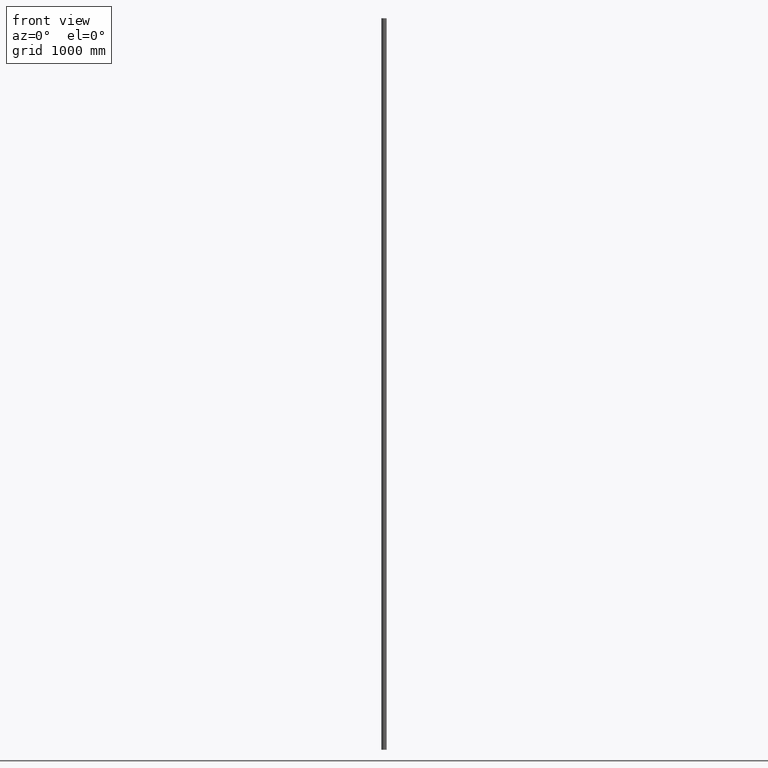
[diagram: clean part render]
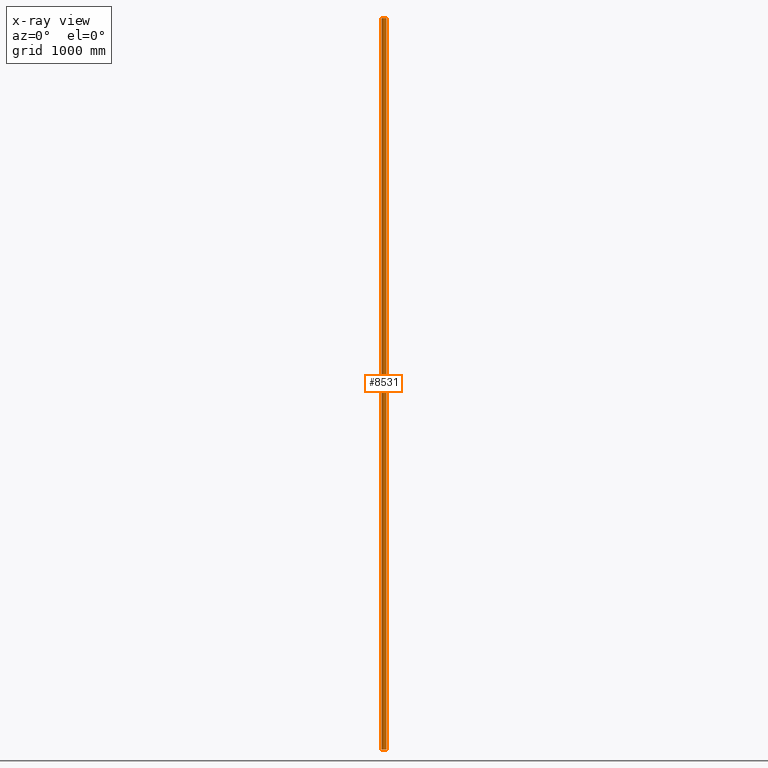
[diagram: x-ray — body ghosted, one internal face saturated and labeled with its STEP entity id]
A machine part, front view, then the same camera in x-ray: the body is ghosted and one INTERNAL B-rep face — a face not visible from any outside direction — is saturated and labeled: STEP entity #8531.
In plain terms, the highlighted cylindrical surface (bore or boss wall) has radius 21.2 mm, axis along (-0, -0, -1).
Its self-contained STEP definition (entity closure, byte-faithful):
#290 = CARTESIAN_POINT ( 'NONE',  ( 0.000000000000000000, 0.000000000000000000, 3000.000000000000000 ) ) ;
#644 = DIRECTION ( 'NONE',  ( -0.000000000000000000, -0.000000000000000000, -1.000000000000000000 ) ) ;
#861 = FACE_OUTER_BOUND ( 'NONE', #1836, .T. ) ;
#1210 = DIRECTION ( 'NONE',  ( 0.000000000000000000, 0.000000000000000000, 1.000000000000000000 ) ) ;
#1596 = EDGE_CURVE ( 'NONE', #2293, #2293, #8224, .T. ) ;
#1832 = CYLINDRICAL_SURFACE ( 'NONE', #7646, 21.19999999999999929 ) ;
#1836 = EDGE_LOOP ( 'NONE', ( #8372 ) ) ;
#2293 = VERTEX_POINT ( 'NONE', #6278 ) ;
#2598 = CIRCLE ( 'NONE', #11111, 21.19999999999999929 ) ;
#4046 = EDGE_CURVE ( 'NONE', #5928, #5928, #2598, .T. ) ;
#4217 = FACE_OUTER_BOUND ( 'NONE', #7029, .T. ) ;
#4701 = AXIS2_PLACEMENT_3D ( 'NONE', #5143, #10457, #9643 ) ;
#5143 = CARTESIAN_POINT ( 'NONE',  ( 0.000000000000000000, 0.000000000000000000, -3000.000000000000000 ) ) ;
#5928 = VERTEX_POINT ( 'NONE', #7215 ) ;
#6278 = CARTESIAN_POINT ( 'NONE',  ( 21.19999999999999929, 0.000000000000000000, -3000.000000000000000 ) ) ;
#7029 = EDGE_LOOP ( 'NONE', ( #7772 ) ) ;
#7215 = CARTESIAN_POINT ( 'NONE',  ( 21.19999999999999929, 0.000000000000000000, 3000.000000000000000 ) ) ;
#7439 = DIRECTION ( 'NONE',  ( 1.000000000000000000, 0.000000000000000000, 0.000000000000000000 ) ) ;
#7646 = AXIS2_PLACEMENT_3D ( 'NONE', #9483, #644, #8746 ) ;
#7772 = ORIENTED_EDGE ( 'NONE', *, *, #1596, .T. ) ;
#8224 = CIRCLE ( 'NONE', #4701, 21.19999999999999929 ) ;
#8372 = ORIENTED_EDGE ( 'NONE', *, *, #4046, .F. ) ;
#8531 = ADVANCED_FACE ( 'NONE', ( #861, #4217 ), #1832, .T. ) ;
#8746 = DIRECTION ( 'NONE',  ( -1.000000000000000000, 0.000000000000000000, 0.000000000000000000 ) ) ;
#9483 = CARTESIAN_POINT ( 'NONE',  ( 0.000000000000000000, 0.000000000000000000, 3000.000000000000000 ) ) ;
#9643 = DIRECTION ( 'NONE',  ( 1.000000000000000000, 0.000000000000000000, 0.000000000000000000 ) ) ;
#10457 = DIRECTION ( 'NONE',  ( 0.000000000000000000, 0.000000000000000000, 1.000000000000000000 ) ) ;
#11111 = AXIS2_PLACEMENT_3D ( 'NONE', #290, #1210, #7439 ) ;